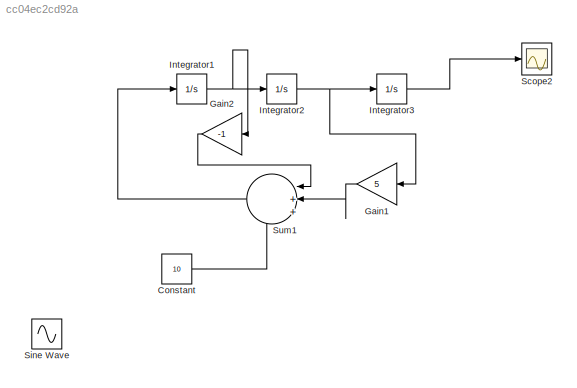
MODEL slx_cc04ec2cd92a
KIND model
CONFIG AbsTol = auto
CONFIG EnableMultiTasking = off
CONFIG FixedStep = auto
CONFIG MaxStep = auto
CONFIG MinStep = auto
CONFIG RelTol = 1e-3
CONFIG SampleTimeConstraint = Unconstrained
CONFIG SolverName = VariableStepAuto
CONFIG StartTime = 0.0
CONFIG StopTime = 15
BLOCK [Constant] Constant
  Value = 10
BLOCK [Gain] Gain1
  Gain = 5
  NameLocation = top
BLOCK [Gain] Gain2
  Gain = -1
  NameLocation = top
BLOCK [Integrator] Integrator1
BLOCK [Integrator] Integrator2
BLOCK [Integrator] Integrator3
BLOCK [Scope] Scope2
  Floating = off
  NumInputPorts = 1
  ScopeSpecificationString = Simulink.scopes.TimeScopeBlockCfg('CurrentConfiguration', extmgr.ConfigurationSet(extmgr.Configuration('Core','General UI',true),extmgr.Configuration('Core','Source UI',true),extmgr.Configuration('Sources','WiredSimulink',true,'DataLoggingVariableName','ScopeData2'),extmgr.Configuration('Visuals','Time Domain',true,'SerializedDisplays',{struct('MinYLimReal','-39693010334.73937','MaxYLimReal','3572...<+1487ch>
BLOCK [Sin] Sine Wave
  Amplitude = 2
  Frequency = 0.5
  SampleTime = 0
BLOCK [Sum] Sum1
  Inputs = |+++
  NameLocation = top
LINE Constant:1 -> Sum1:3
LINE Gain1:1 -> Sum1:2
LINE Gain2:1 -> Sum1:1
NET Integrator1:1 -> Gain2:1, Integrator2:1
NET Integrator2:1 -> Gain1:1, Integrator3:1
LINE Integrator3:1 -> Scope2:1
LINE Sum1:1 -> Integrator1:1
note: NET lines group one-source signal fan-out (src -> all destinations, sorted); 1:1 wires keep LINE
